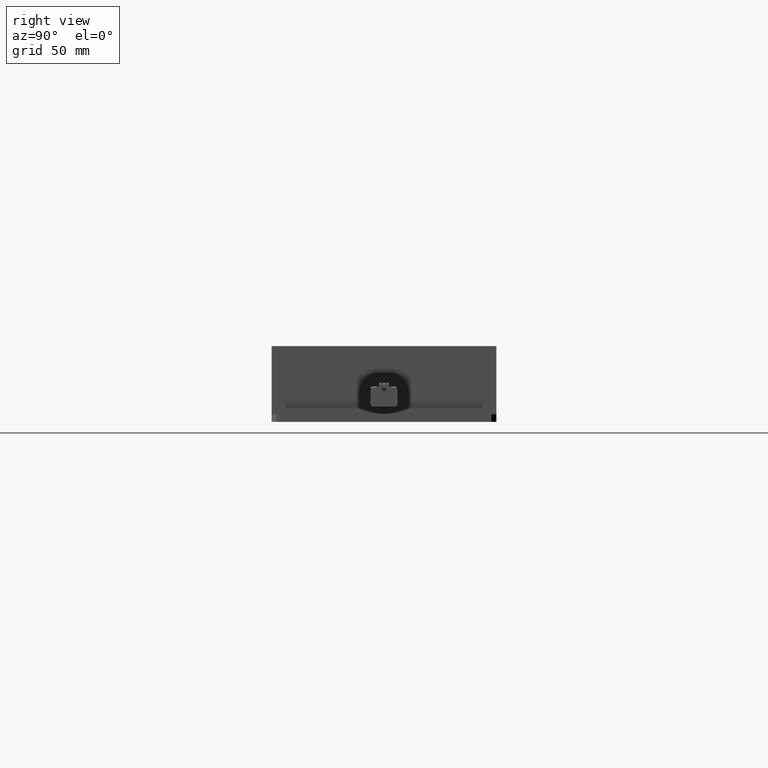
[diagram: clean part render]
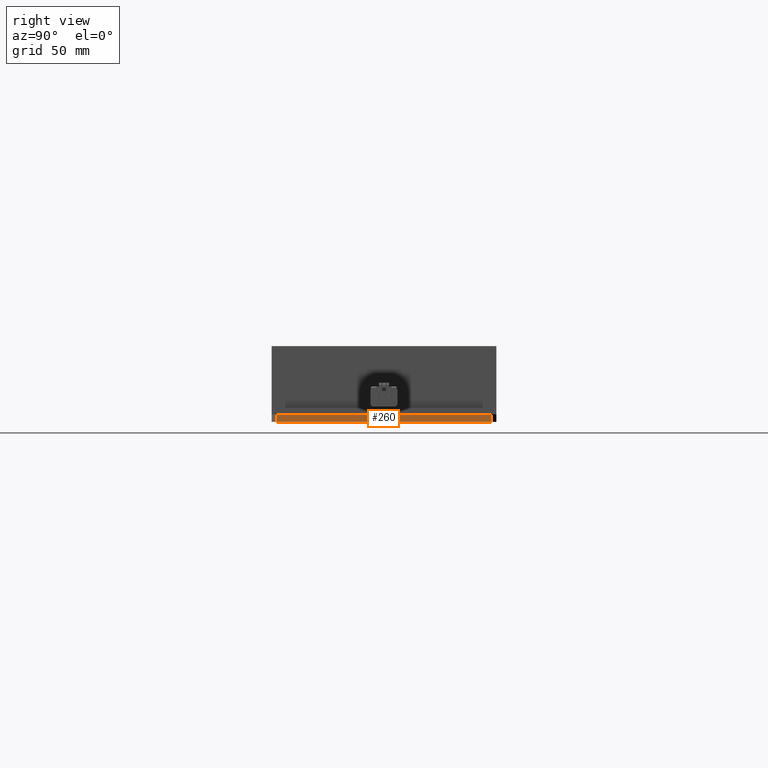
[diagram: same view with one face highlighted and labeled with its STEP entity id]
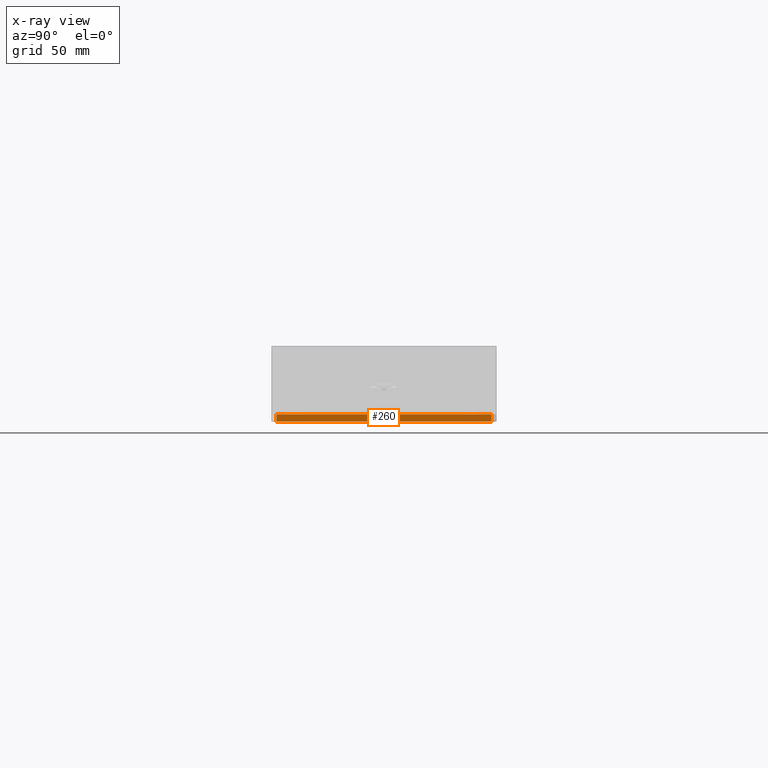
[diagram: x-ray of the same camera — body ghosted, the highlighted face saturated]
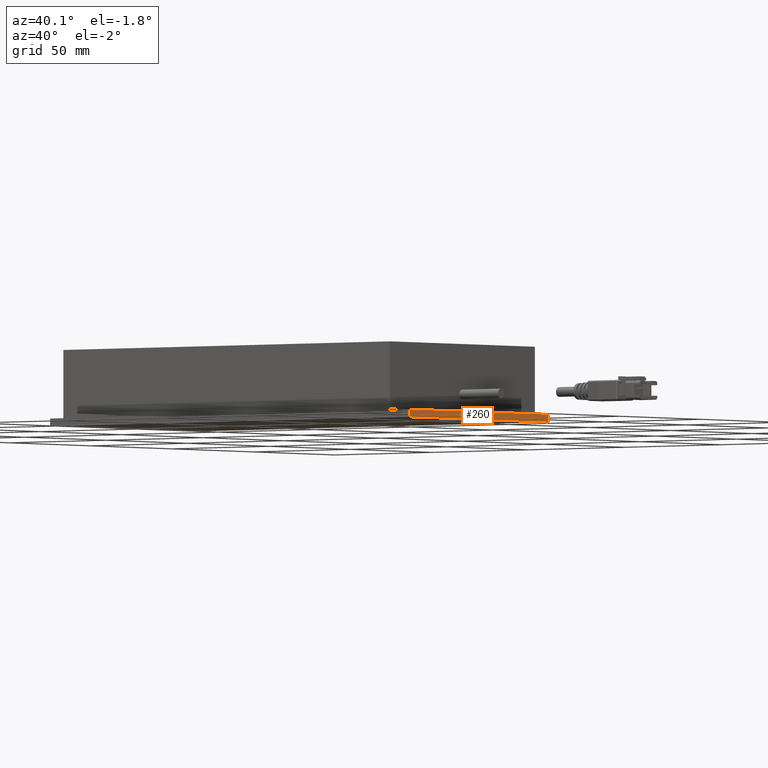
[diagram: same view with one face highlighted and labeled with its STEP entity id]
A machine part, right view. The second image highlights one B-rep face of the part: STEP entity #260.
The next image is the same camera in x-ray: the body ghosted, the highlighted face saturated — about 0% of this face is hidden behind the body in this view.
A second angle (auxiliary view) of the same face is appended — the face is thin or edge-on in the first view.
In plain terms, the highlighted planar face has unit normal (1, 0, 0).
Its self-contained STEP definition (entity closure, byte-faithful):
#260=ADVANCED_FACE('12:247763',(#655),#656,.T.);
#655=FACE_OUTER_BOUND('',#1218,.T.);
#656=PLANE('',#1219);
#1218=EDGE_LOOP('',(#2168,#2169,#2170,#2171));
#1219=AXIS2_PLACEMENT_3D('',#2172,#2173,#2174);
#2168=ORIENTED_EDGE('',*,*,#3712,.F.);
#2169=ORIENTED_EDGE('',*,*,#3713,.T.);
#2170=ORIENTED_EDGE('',*,*,#3714,.T.);
#2171=ORIENTED_EDGE('',*,*,#3715,.T.);
#2172=CARTESIAN_POINT('',(0.093,0.0445,0.0));
#2173=DIRECTION('',(1.0,0.0,-0.0));
#2174=DIRECTION('',(-0.0,0.0,-1.0));
#3712=EDGE_CURVE('12:247898',#4336,#4337,#4338,.F.);
#3713=EDGE_CURVE('12:247838',#4336,#4339,#4340,.T.);
#3714=EDGE_CURVE('12:247910',#4339,#4341,#4342,.F.);
#3715=EDGE_CURVE('12:247844',#4341,#4337,#4343,.T.);
#4336=VERTEX_POINT('',#5245);
#4337=VERTEX_POINT('',#5246);
#4338=LINE('',#5247,#5248);
#4339=VERTEX_POINT('',#5249);
#4340=LINE('',#5250,#5251);
#4341=VERTEX_POINT('',#5252);
#4342=LINE('',#5253,#5254);
#4343=LINE('',#5255,#5256);
#5245=CARTESIAN_POINT('',(0.093,-0.0425,0.003));
#5246=CARTESIAN_POINT('',(0.093,0.0425,0.003));
#5247=CARTESIAN_POINT('',(0.093,0.0445,0.003));
#5248=VECTOR('',#6575,1.0);
#5249=CARTESIAN_POINT('',(0.093,-0.0425,0.0));
#5250=CARTESIAN_POINT('',(0.093,-0.0425,0.0));
#5251=VECTOR('',#6576,1.0);
#5252=CARTESIAN_POINT('',(0.093,0.0425,0.0));
#5253=CARTESIAN_POINT('',(0.093,0.0445,0.0));
#5254=VECTOR('',#6577,1.0);
#5255=CARTESIAN_POINT('',(0.093,0.0425,0.0));
#5256=VECTOR('',#6578,1.0);
#6575=DIRECTION('',(0.0,-1.0,0.0));
#6576=DIRECTION('',(0.0,0.0,-1.0));
#6577=DIRECTION('',(0.0,-1.0,0.0));
#6578=DIRECTION('',(0.0,0.0,1.0));